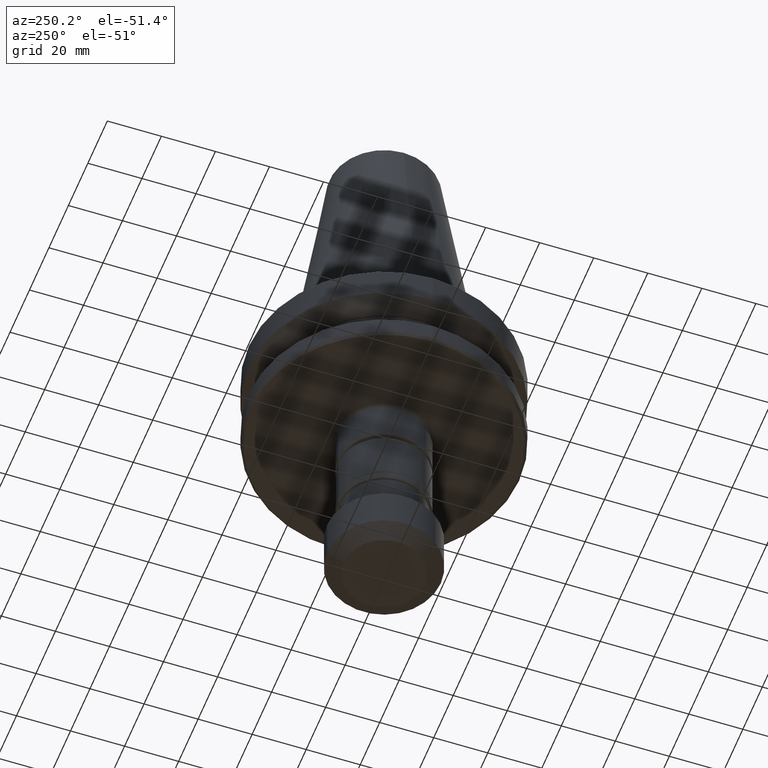
[diagram: clean part render]
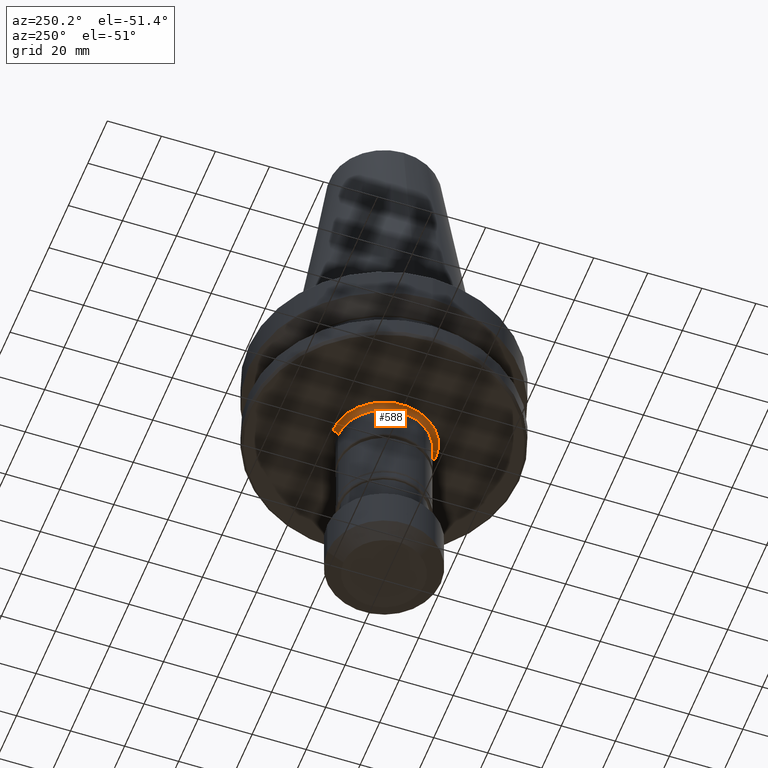
[diagram: same view with one face highlighted and labeled with its STEP entity id]
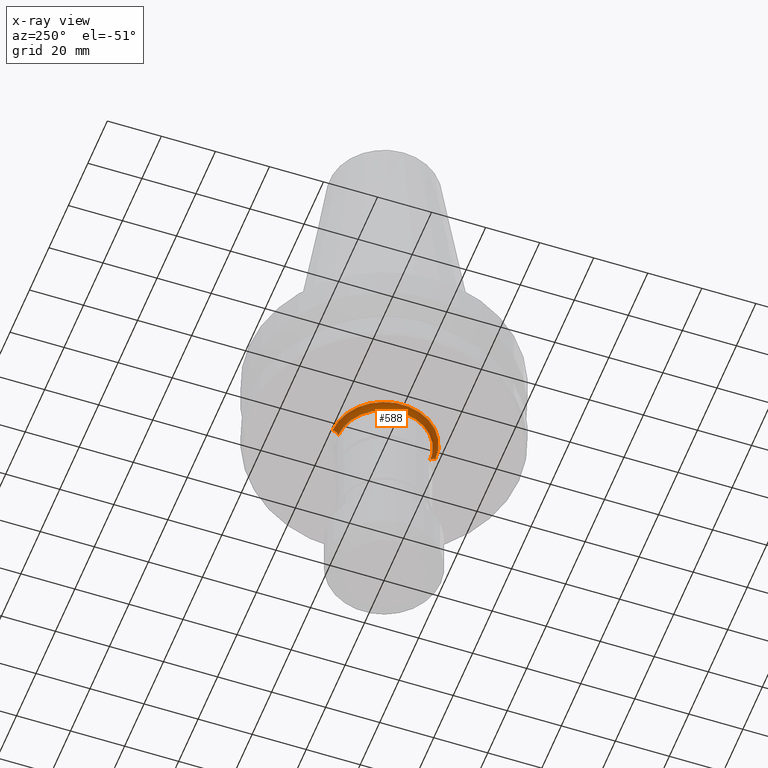
[diagram: x-ray of the same camera — body ghosted, the highlighted face saturated]
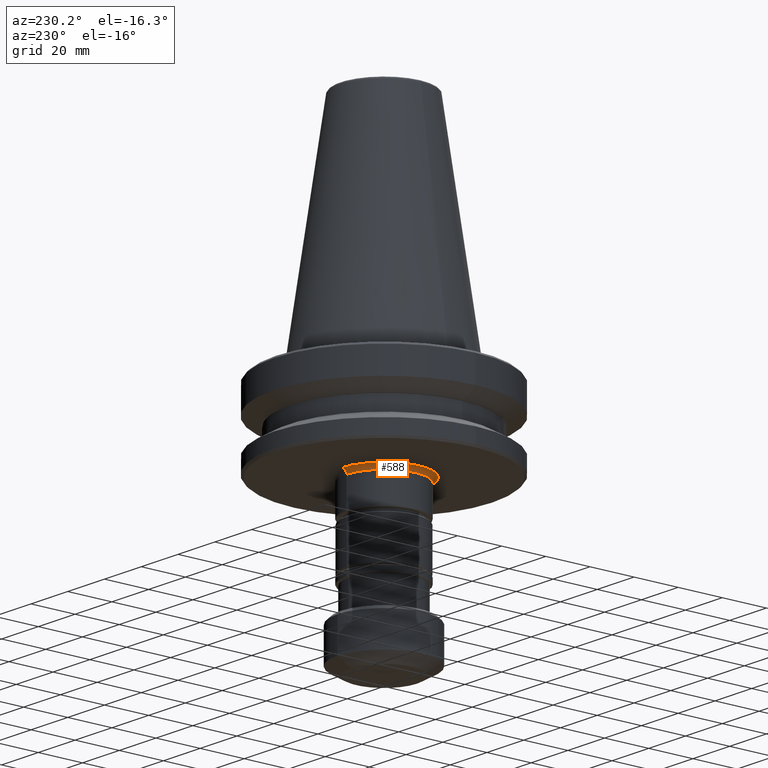
[diagram: same view with one face highlighted and labeled with its STEP entity id]
A machine part, auxiliary view. The second image highlights one B-rep face of the part: STEP entity #588.
The next image is the same camera in x-ray: the body ghosted, the highlighted face saturated — about 0% of this face is hidden behind the body in this view.
A second angle (auxiliary view) of the same face is appended — the face is thin or edge-on in the first view.
In plain terms, the highlighted toroidal blend (fillet) surface has major radius 19 mm and minor (blend) radius 2 mm.
Its self-contained STEP definition (entity closure, byte-faithful):
#78 = CARTESIAN_POINT ( 'NONE',  ( 0.0000000000000000000, -6.938893903907228400E-015, -39.99999999999721500 ) ) ;
#89 = CARTESIAN_POINT ( 'NONE',  ( 2.326828918379171500E-015, 18.99999999999347000, -38.00000000000060400 ) ) ;
#172 = CARTESIAN_POINT ( 'NONE',  ( 0.0000000000000000000, -5.396917480806214100E-015, -39.99999999999721500 ) ) ;
#208 = AXIS2_PLACEMENT_3D ( 'NONE', #172, #1268, #330 ) ;
#330 = DIRECTION ( 'NONE',  ( 0.0000000000000000000, -1.000000000000000000, 2.857191607491656100E-015 ) ) ;
#507 = CIRCLE ( 'NONE', #208, 16.99999999999735700 ) ;
#523 = EDGE_CURVE ( 'NONE', #1676, #823, #795, .T. ) ;
#579 = CIRCLE ( 'NONE', #1901, 18.99999999999347400 ) ;
#584 = AXIS2_PLACEMENT_3D ( 'NONE', #1278, #660, #1560 ) ;
#588 = ADVANCED_FACE ( 'NONE', ( #1057 ), #1094, .F. ) ;
#649 = DIRECTION ( 'NONE',  ( -0.0000000000000000000, 2.698458740408409400E-015, 1.000000000000000000 ) ) ;
#660 = DIRECTION ( 'NONE',  ( -1.000000000000000000, -0.0000000000000000000, 0.0000000000000000000 ) ) ;
#698 = EDGE_CURVE ( 'NONE', #1767, #1341, #951, .T. ) ;
#780 = CARTESIAN_POINT ( 'NONE',  ( 2.326828918379171900E-015, 18.99999999999346700, -39.99999999999725700 ) ) ;
#795 = CIRCLE ( 'NONE', #853, 1.999999999996116000 ) ;
#811 = CARTESIAN_POINT ( 'NONE',  ( 0.0000000000000000000, -18.99999999999347700, -38.00000000000050400 ) ) ;
#823 = VERTEX_POINT ( 'NONE', #1246 ) ;
#837 = DIRECTION ( 'NONE',  ( 1.000000000000000000, -1.224646799147353200E-016, 3.304658859072356900E-031 ) ) ;
#853 = AXIS2_PLACEMENT_3D ( 'NONE', #780, #837, #1657 ) ;
#891 = CARTESIAN_POINT ( 'NONE',  ( 0.0000000000000000000, -16.99999999999736400, -39.99999999999716500 ) ) ;
#951 = CIRCLE ( 'NONE', #584, 1.999999999996116000 ) ;
#1057 = FACE_OUTER_BOUND ( 'NONE', #1592, .T. ) ;
#1094 = TOROIDAL_SURFACE ( 'NONE', #1334, 18.99999999999347400, 1.999999999996116000 ) ;
#1120 = EDGE_CURVE ( 'NONE', #1767, #1676, #579, .T. ) ;
#1246 = CARTESIAN_POINT ( 'NONE',  ( 2.204364238464673800E-015, 16.99999999999735000, -39.99999999999725700 ) ) ;
#1268 = DIRECTION ( 'NONE',  ( -0.0000000000000000000, 2.698458740408409400E-015, 1.000000000000000000 ) ) ;
#1278 = CARTESIAN_POINT ( 'NONE',  ( 0.0000000000000000000, -18.99999999999348100, -39.99999999999716500 ) ) ;
#1334 = AXIS2_PLACEMENT_3D ( 'NONE', #78, #649, #1617 ) ;
#1341 = VERTEX_POINT ( 'NONE', #891 ) ;
#1364 = ORIENTED_EDGE ( 'NONE', *, *, #698, .F. ) ;
#1410 = DIRECTION ( 'NONE',  ( 0.0000000000000000000, -1.000000000000000000, 2.556434596177225400E-015 ) ) ;
#1560 = DIRECTION ( 'NONE',  ( 0.0000000000000000000, 0.0000000000000000000, 1.000000000000000000 ) ) ;
#1592 = EDGE_LOOP ( 'NONE', ( #1883, #1861, #1616, #1364 ) ) ;
#1616 = ORIENTED_EDGE ( 'NONE', *, *, #2026, .T. ) ;
#1617 = DIRECTION ( 'NONE',  ( 0.0000000000000000000, -1.000000000000000000, 2.698458740408409400E-015 ) ) ;
#1657 = DIRECTION ( 'NONE',  ( 1.224646799147352000E-016, 1.000000000000000000, 0.0000000000000000000 ) ) ;
#1676 = VERTEX_POINT ( 'NONE', #89 ) ;
#1687 = DIRECTION ( 'NONE',  ( 0.0000000000000000000, -2.698458740408409400E-015, -1.000000000000000000 ) ) ;
#1767 = VERTEX_POINT ( 'NONE', #811 ) ;
#1861 = ORIENTED_EDGE ( 'NONE', *, *, #523, .T. ) ;
#1883 = ORIENTED_EDGE ( 'NONE', *, *, #1120, .T. ) ;
#1901 = AXIS2_PLACEMENT_3D ( 'NONE', #2011, #1687, #1410 ) ;
#2011 = CARTESIAN_POINT ( 'NONE',  ( 0.0000000000000000000, -6.938893903907228400E-015, -38.00000000000000700 ) ) ;
#2026 = EDGE_CURVE ( 'NONE', #823, #1341, #507, .T. ) ;